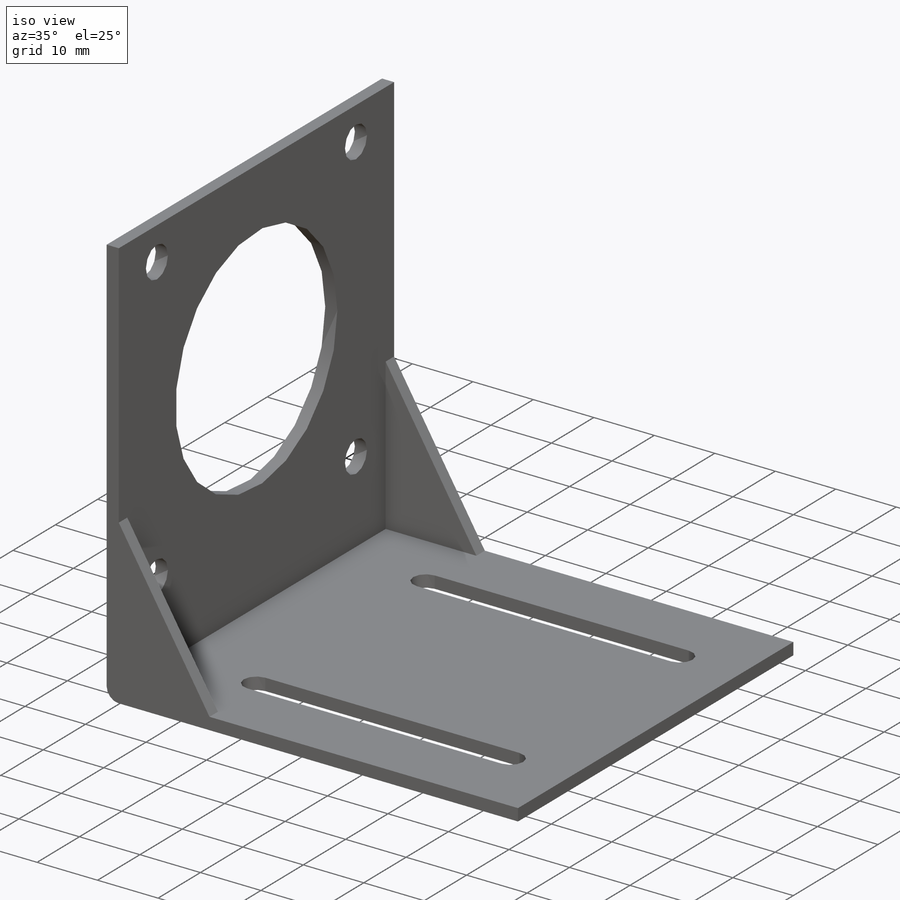
[diagram: iso view]
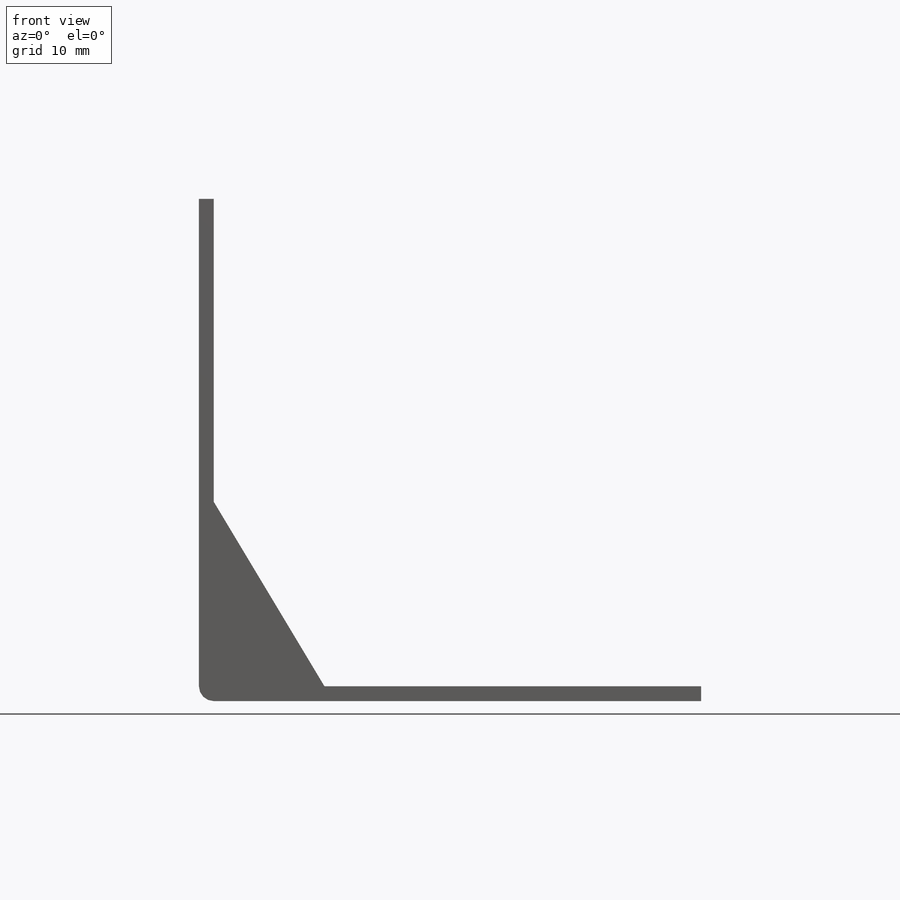
[diagram: front view]
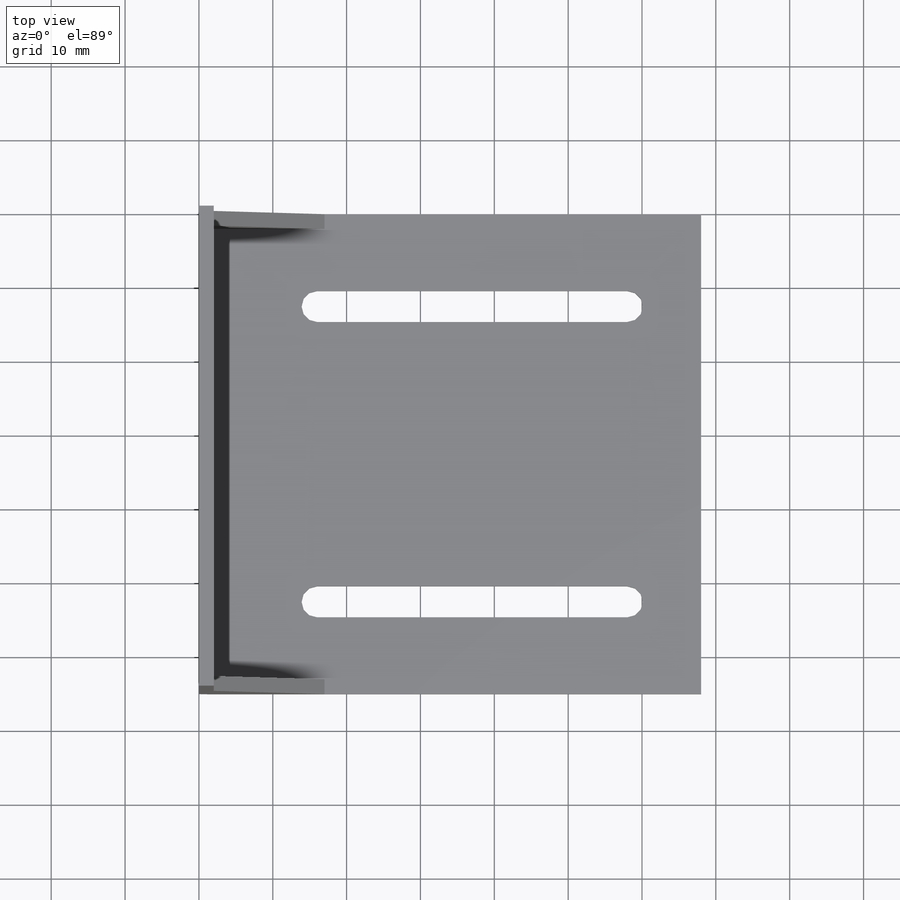
[diagram: top view]
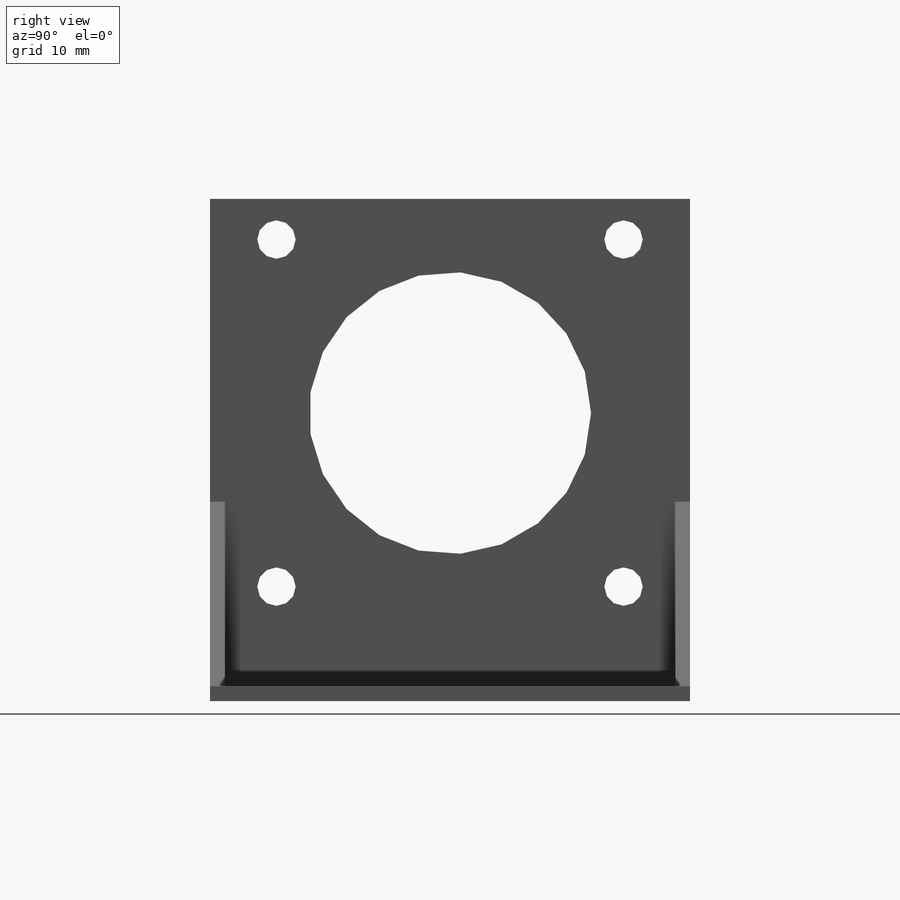
[diagram: right view]
SOLIDWORKS PART (.sldprt)
format: sldprt  version: not decoded by parser v0  size: 255,488 bytes
history: native  units: mm
features: sketch x5, plane x3, extrude x3, cut_extrude x2, material x1 (+9 scaffold rows collapsed)
feature tree (23):
  scaffold x9  (default folders/planes/origin — collapsed)
  material  "Материал <не указан>"
  plane  "Спереди"
  plane  "Сверху"
  plane  "Справа"
  sketch  "Эскиз1"  dims[D1=68.0mm D2=2.0mm]
  extrude  "Бобышка-Вытянуть1"  Depth=65mm
  sketch  "Эскиз2"  dims[c1.D2=38.2mm c1.D4=5.2mm c1.D5=5.2mm c1.D6=5.2mm c1.D7=5.2mm c1.D1=29.0mm c1.D3=47.0mm c2.D4=47.0mm c2.D3=47.0mm]
  cut_extrude  "Вырез-Вытянуть1"  [1 undecoded]
  sketch  "Эскиз3"  dims[c1.D5=~2.398075mm c1.D1=20.0mm c1.D2=40.0mm c1.D3=~18.245641mm c2.D1=10.0mm c2.D3=42.0mm c2.D4=42.0mm c2.D5=42.0mm]
  cut_extrude  "Вырез-Вытянуть2"  [1 undecoded]
  sketch  "Эскиз4"  dims[c1.D3=~3.519851mm c1.D1=25.0mm c1.D2=15.0mm c2.D3=25.0mm]
  extrude  "Бобышка-Вытянуть2"  Depth=2mm
  sketch  "Эскиз5"  dims[D1=25.0mm]
  extrude  "Бобышка-Вытянуть3"  Depth=2mm
decode coverage: 8 of 10 modeling features carry decoded parameters
note: ~ marks probable driven/reference dimensions
note: 2 parameter values undecoded
note: suppression state not decoded; provenance and decode notes live in map.json
